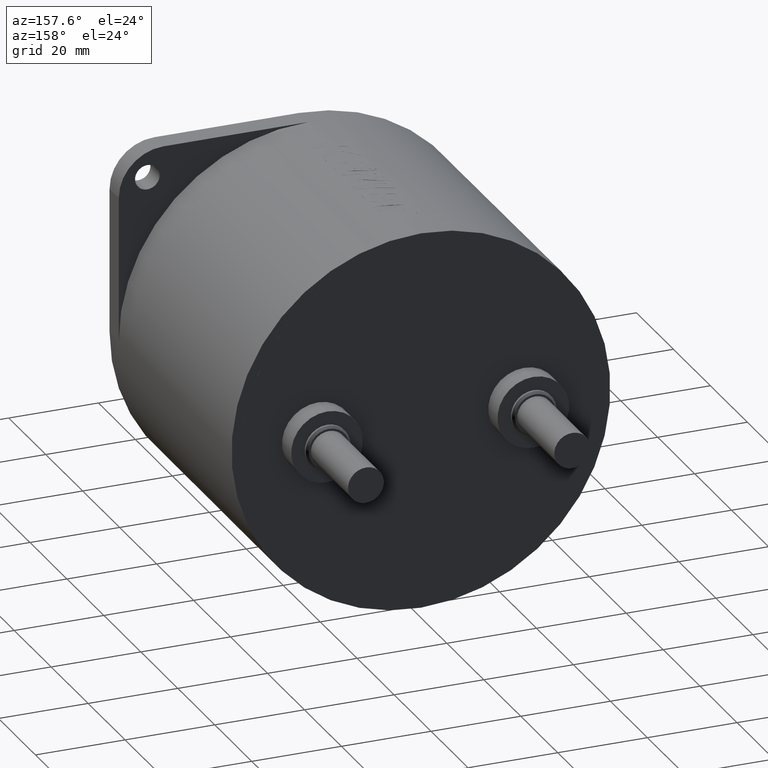
[diagram: clean part render]
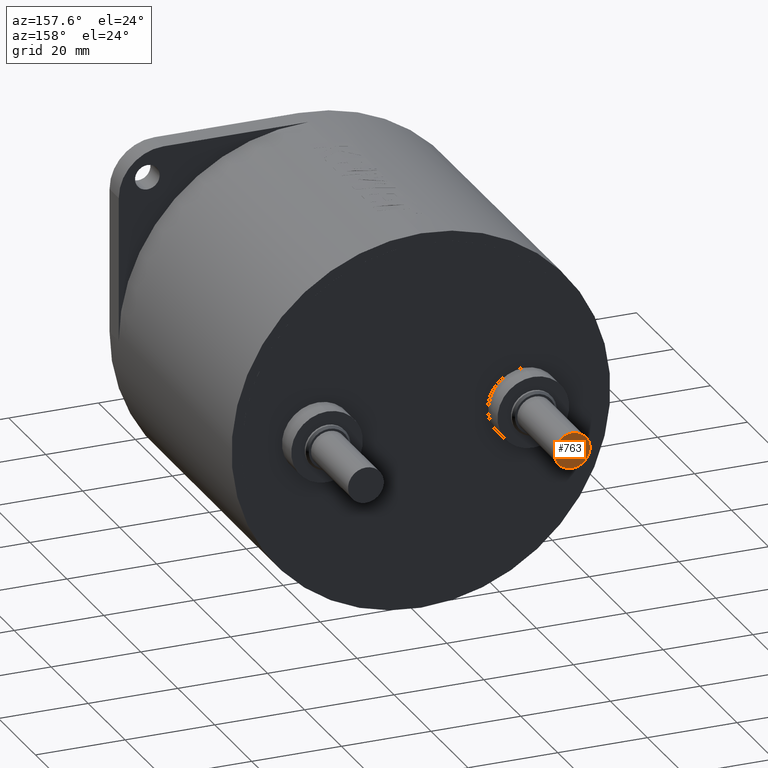
[diagram: same view with one face highlighted and labeled with its STEP entity id]
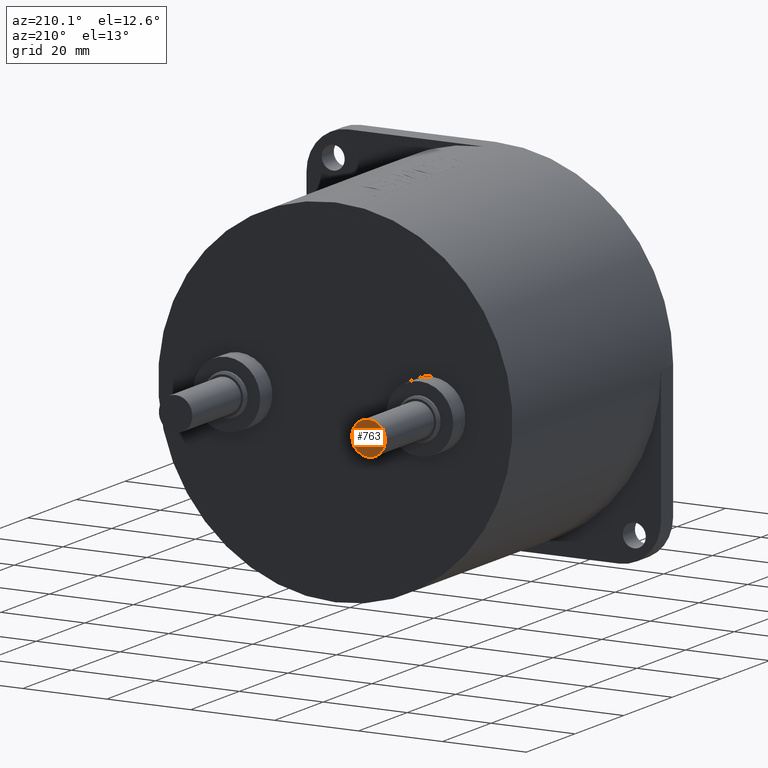
[diagram: same view with one face highlighted and labeled with its STEP entity id]
A machine part, auxiliary view. The second image highlights one B-rep face of the part: STEP entity #763.
A second angle (auxiliary view) of the same face is appended — the face is thin or edge-on in the first view.
In plain terms, the highlighted planar face has unit normal (0, 1, 0).
Its self-contained STEP definition (entity closure, byte-faithful):
#209 = EDGE_CURVE ( 'NONE', #2016, #1020, #2234, .T. ) ;
#212 = ORIENTED_EDGE ( 'NONE', *, *, #2117, .T. ) ;
#563 = CARTESIAN_POINT ( 'NONE',  ( -23.00000000000000000, 92.00000000000001400, 3.999999999999999100 ) ) ;
#636 = DIRECTION ( 'NONE',  ( 0.0000000000000000000, 0.0000000000000000000, 1.000000000000000000 ) ) ;
#763 = ADVANCED_FACE ( 'NONE', ( #2344 ), #2966, .T. ) ;
#1020 = VERTEX_POINT ( 'NONE', #3123 ) ;
#1072 = DIRECTION ( 'NONE',  ( 0.0000000000000000000, -0.0000000000000000000, 1.000000000000000000 ) ) ;
#1310 = CARTESIAN_POINT ( 'NONE',  ( -23.00000000000000000, 92.00000000000001400, 0.0000000000000000000 ) ) ;
#1425 = AXIS2_PLACEMENT_3D ( 'NONE', #3801, #4134, #636 ) ;
#1689 = EDGE_LOOP ( 'NONE', ( #212, #2274 ) ) ;
#1828 = AXIS2_PLACEMENT_3D ( 'NONE', #2346, #2997, #1072 ) ;
#1976 = DIRECTION ( 'NONE',  ( 0.0000000000000000000, 1.000000000000000000, 0.0000000000000000000 ) ) ;
#1994 = DIRECTION ( 'NONE',  ( 0.0000000000000000000, 0.0000000000000000000, 1.000000000000000000 ) ) ;
#2016 = VERTEX_POINT ( 'NONE', #563 ) ;
#2117 = EDGE_CURVE ( 'NONE', #1020, #2016, #4043, .T. ) ;
#2234 = CIRCLE ( 'NONE', #3587, 3.999999999999999100 ) ;
#2274 = ORIENTED_EDGE ( 'NONE', *, *, #209, .T. ) ;
#2344 = FACE_OUTER_BOUND ( 'NONE', #1689, .T. ) ;
#2346 = CARTESIAN_POINT ( 'NONE',  ( -23.00000000000000000, 92.00000000000001400, 0.0000000000000000000 ) ) ;
#2966 = PLANE ( 'NONE',  #1828 ) ;
#2997 = DIRECTION ( 'NONE',  ( 0.0000000000000000000, 1.000000000000000000, 0.0000000000000000000 ) ) ;
#3123 = CARTESIAN_POINT ( 'NONE',  ( -23.00000000000000000, 92.00000000000001400, -3.999999999999999100 ) ) ;
#3587 = AXIS2_PLACEMENT_3D ( 'NONE', #1310, #1976, #1994 ) ;
#3801 = CARTESIAN_POINT ( 'NONE',  ( -23.00000000000000000, 92.00000000000001400, 0.0000000000000000000 ) ) ;
#4043 = CIRCLE ( 'NONE', #1425, 3.999999999999999100 ) ;
#4134 = DIRECTION ( 'NONE',  ( 0.0000000000000000000, 1.000000000000000000, 0.0000000000000000000 ) ) ;